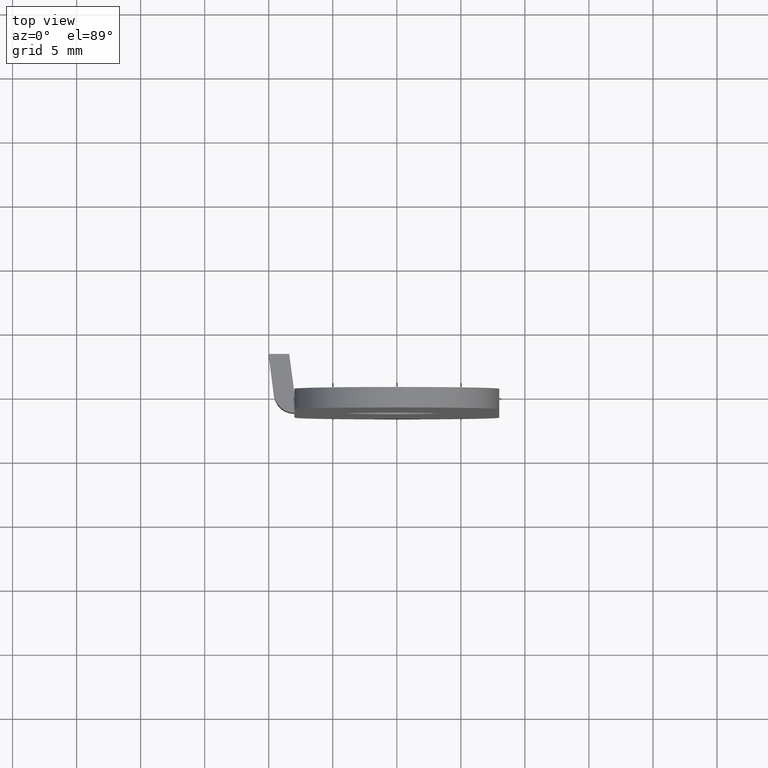
[diagram: clean part render]
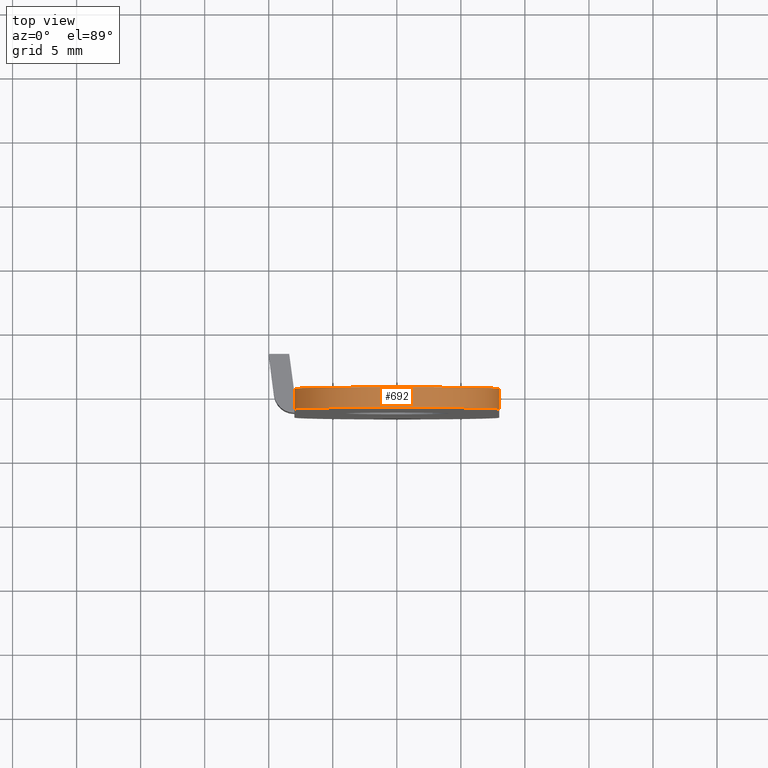
[diagram: same view with one face highlighted and labeled with its STEP entity id]
A machine part, top view. The second image highlights one B-rep face of the part: STEP entity #692.
In plain terms, the highlighted face is a freeform B-spline surface patch.
Its self-contained STEP definition (entity closure, byte-faithful):
#443=CARTESIAN_POINT('',(8.0,-1.599990999999965,19.0));
#444=VERTEX_POINT('',#443);
#452=CARTESIAN_POINT('',(-0.000000671420413,-1.599990999999965,26.999999999999979));
#453=VERTEX_POINT('',#452);
#454=CARTESIAN_POINT('',(8.0,-1.599990999999965,19.0));
#455=CARTESIAN_POINT('',(8.000055658176320,-1.599990999999967,19.523601726682081));
#456=CARTESIAN_POINT('',(7.900058436080794,-1.599990999999963,20.538051594862448));
#457=CARTESIAN_POINT('',(7.521515978707759,-1.599990999999972,21.814067541485230));
#458=CARTESIAN_POINT('',(6.957567482298716,-1.599990999999964,23.015969337826039));
#459=CARTESIAN_POINT('',(6.257013327467415,-1.599990999999957,24.050641715864302));
#460=CARTESIAN_POINT('',(5.308734373837774,-1.599990999999986,25.028422618844541));
#461=CARTESIAN_POINT('',(4.324430070476393,-1.599990999999913,25.767838439556130));
#462=CARTESIAN_POINT('',(3.210262216620889,-1.599991000000043,26.363364711971709));
#463=CARTESIAN_POINT('',(1.783427558124979,-1.599990999999904,26.859192141998982));
#464=CARTESIAN_POINT('',(0.670875504879247,-1.599990999999988,27.000181070990550));
#465=CARTESIAN_POINT('',(-0.000000671420413,-1.599990999999965,26.999999999999979));
#466=B_SPLINE_CURVE_WITH_KNOTS('',3,(#454,#455,#456,#457,#458,#459,#460,#461,#462,#463,#464,#465),.UNSPECIFIED.,.F.,.U.,(4,1,1,1,1,1,1,1,1,4),(0.000000037951718,1.570796537303250,3.043422620387393,3.976088266977515,5.546892700908940,6.774049362718611,8.050335254018872,9.228443648545097,10.553814228072291,12.566390705773090),.UNSPECIFIED.);
#467=EDGE_CURVE('',#444,#453,#466,.T.);
#469=CARTESIAN_POINT('',(-8.0,-1.599990999999965,19.0));
#470=VERTEX_POINT('',#469);
#471=CARTESIAN_POINT('',(-0.000000671420413,-1.599990999999965,26.999999999999979));
#472=CARTESIAN_POINT('',(-0.409058530334494,-1.599990999999967,27.000021492303130));
#473=CARTESIAN_POINT('',(-1.128997142312720,-1.599990999999961,26.944659344639899));
#474=CARTESIAN_POINT('',(-2.218660525742400,-1.599990999999967,26.710486490052840));
#475=CARTESIAN_POINT('',(-3.145530879441106,-1.599990999999970,26.378850672017400));
#476=CARTESIAN_POINT('',(-4.095356863511993,-1.599990999999963,25.897084283627049));
#477=CARTESIAN_POINT('',(-4.883322783046102,-1.599990999999969,25.363563316041908));
#478=CARTESIAN_POINT('',(-5.646387689577706,-1.599990999999961,24.692976438119072));
#479=CARTESIAN_POINT('',(-6.249944118269243,-1.599990999999970,24.022936347426349));
#480=CARTESIAN_POINT('',(-6.856391194409314,-1.599990999999968,23.167463483428559));
#481=CARTESIAN_POINT('',(-7.353571376795534,-1.599990999999963,22.223432441611699));
#482=CARTESIAN_POINT('',(-7.722798476186717,-1.599990999999968,21.171135533468910));
#483=CARTESIAN_POINT('',(-7.946885246248465,-1.599990999999961,20.112638819968112));
#484=CARTESIAN_POINT('',(-8.000017664104293,-1.599990999999973,19.392695676937169));
#485=CARTESIAN_POINT('',(-8.0,-1.599990999999965,19.0));
#486=B_SPLINE_CURVE_WITH_KNOTS('',3,(#471,#472,#473,#474,#475,#476,#477,#478,#479,#480,#481,#482,#483,#484,#485),.UNSPECIFIED.,.F.,.U.,(4,1,1,1,1,1,1,1,1,1,1,1,4),(0.000000038011205,1.227172697971893,2.159840542873159,3.337947909478849,4.172435515595490,5.350548260045036,6.185028635192336,7.215843494601299,8.050334768926938,9.326617916998785,10.406544262785321,11.388302338843920,12.566389948924650),.UNSPECIFIED.);
#487=EDGE_CURVE('',#453,#470,#486,.T.);
#553=CARTESIAN_POINT('',(8.0,0.0,19.0));
#554=VERTEX_POINT('',#553);
#605=CARTESIAN_POINT('',(-8.0,0.0,19.0));
#606=VERTEX_POINT('',#605);
#612=CARTESIAN_POINT('',(-0.000000671420413,0.0,26.999999999999979));
#613=VERTEX_POINT('',#612);
#614=CARTESIAN_POINT('',(-0.000000671420413,0.0,26.999999999999979));
#615=CARTESIAN_POINT('',(-0.409058530334453,0.0,27.000021492303119));
#616=CARTESIAN_POINT('',(-1.128997142312503,0.0,26.944659344639810));
#617=CARTESIAN_POINT('',(-2.218660525744756,0.0,26.710486490053849));
#618=CARTESIAN_POINT('',(-3.145530874310826,0.0,26.378850669165359));
#619=CARTESIAN_POINT('',(-4.095356896828961,0.0,25.897084302152621));
#620=CARTESIAN_POINT('',(-4.883322665121735,0.0,25.363563250486859));
#621=CARTESIAN_POINT('',(-5.646380869981027,0.0,24.692971783885781));
#622=CARTESIAN_POINT('',(-6.414601708059358,0.0,23.840227268056552));
#623=CARTESIAN_POINT('',(-7.107338756405541,0.0,22.760998469852780));
#624=CARTESIAN_POINT('',(-7.575450113111739,0.0,21.640444240427279));
#625=CARTESIAN_POINT('',(-7.908213628331541,0.0,20.423490316932750));
#626=CARTESIAN_POINT('',(-8.000114431770410,0.0,19.572695766128980));
#627=CARTESIAN_POINT('',(-8.0,0.0,19.0));
#628=B_SPLINE_CURVE_WITH_KNOTS('',3,(#614,#615,#616,#617,#618,#619,#620,#621,#622,#623,#624,#625,#626,#627),.UNSPECIFIED.,.F.,.U.,(4,1,1,1,1,1,1,1,1,1,1,4),(0.000000038011205,1.227172697971893,2.159840542873159,3.337947909478849,4.172435515595490,5.350548260045036,6.185028635192336,7.215843494601299,8.786653071018664,10.013847000659320,10.848336786208170,12.566389948924650),.UNSPECIFIED.);
#629=EDGE_CURVE('',#613,#606,#628,.T.);
#631=CARTESIAN_POINT('',(8.0,0.0,19.0));
#632=CARTESIAN_POINT('',(8.000035223863407,0.0,19.474505787027748));
#633=CARTESIAN_POINT('',(7.909521142593536,0.0,20.488983960037849));
#634=CARTESIAN_POINT('',(7.542416901466003,0.0,21.769546784843889));
#635=CARTESIAN_POINT('',(6.957576740421087,0.0,23.015974436050140));
#636=CARTESIAN_POINT('',(6.257007821979242,0.0,24.050639299313659));
#637=CARTESIAN_POINT('',(5.308735200877441,0.0,25.028423026176888));
#638=CARTESIAN_POINT('',(4.324430926242860,0.0,25.767841190327420));
#639=CARTESIAN_POINT('',(3.398362635514022,0.0,26.262807954450619));
#640=CARTESIAN_POINT('',(2.422760313678783,0.0,26.646046299451200));
#641=CARTESIAN_POINT('',(1.341705875589080,0.0,26.923897167868589));
#642=CARTESIAN_POINT('',(0.458145628851911,0.0,27.000034547355241));
#643=CARTESIAN_POINT('',(-0.000000671420413,0.0,26.999999999999979));
#644=B_SPLINE_CURVE_WITH_KNOTS('',3,(#631,#632,#633,#634,#635,#636,#637,#638,#639,#640,#641,#642,#643),.UNSPECIFIED.,.F.,.U.,(4,1,1,1,1,1,1,1,1,1,4),(0.000000037951718,1.423522324093755,3.043422620387393,3.976088266977515,5.546892700908940,6.774049362718611,8.050335254018872,9.228443648545097,9.915672165121981,11.191955773266610,12.566390705773090),.UNSPECIFIED.);
#645=EDGE_CURVE('',#554,#613,#644,.T.);
#658=CARTESIAN_POINT('',(-7.997258599804455,0.039999774999999,18.790584413537012));
#659=CARTESIAN_POINT('',(-7.997258599804455,-1.640990769374965,18.790584413537012));
#660=CARTESIAN_POINT('',(-8.217936582743215,0.039999774999999,27.217936582743196));
#661=CARTESIAN_POINT('',(-8.217936582743215,-1.640990769374965,27.217936582743196));
#662=CARTESIAN_POINT('',(0.209415586462976,0.039999774999999,26.997258599804461));
#663=CARTESIAN_POINT('',(0.209415586462976,-1.640990769374965,26.997258599804461));
#664=CARTESIAN_POINT('',(8.636767755669169,0.039999774999999,26.776580616865715));
#665=CARTESIAN_POINT('',(8.636767755669169,-1.640990769374965,26.776580616865715));
#666=CARTESIAN_POINT('',(7.975338669865026,0.039999774999999,18.372327234177249));
#667=CARTESIAN_POINT('',(7.975338669865026,-1.640990769374965,18.372327234177249));
#675=(BOUNDED_SURFACE()B_SPLINE_SURFACE(1,2,((#658,#660,#662,#664,#666),(#659,#661,#663,#665,#667)),.UNSPECIFIED.,.F.,.F.,.U.)B_SPLINE_SURFACE_WITH_KNOTS((2,2),(3,2,3),(0.0,1.0),(0.0,13.748284990938750,27.496569981877510),.UNSPECIFIED.)GEOMETRIC_REPRESENTATION_ITEM()RATIONAL_B_SPLINE_SURFACE(((1.0,0.688354575693754,1.0,0.688354575693754,1.0),(1.0,0.688354575693754,1.0,0.688354575693754,1.0)))REPRESENTATION_ITEM('')SURFACE());
#676=ORIENTED_EDGE('',*,*,#487,.F.);
#677=ORIENTED_EDGE('',*,*,#467,.F.);
#678=CARTESIAN_POINT('',(8.0,0.0,19.0));
#679=CARTESIAN_POINT('',(8.0,-1.599990999999965,19.0));
#680=QUASI_UNIFORM_CURVE('',1,(#678,#679),.UNSPECIFIED.,.F.,.U.);
#681=EDGE_CURVE('',#554,#444,#680,.T.);
#682=ORIENTED_EDGE('',*,*,#681,.F.);
#683=ORIENTED_EDGE('',*,*,#645,.T.);
#684=ORIENTED_EDGE('',*,*,#629,.T.);
#685=CARTESIAN_POINT('',(-8.0,0.0,19.0));
#686=CARTESIAN_POINT('',(-8.0,-1.599990999999965,19.0));
#687=QUASI_UNIFORM_CURVE('',1,(#685,#686),.UNSPECIFIED.,.F.,.U.);
#688=EDGE_CURVE('',#606,#470,#687,.T.);
#689=ORIENTED_EDGE('',*,*,#688,.T.);
#690=EDGE_LOOP('',(#676,#677,#682,#683,#684,#689));
#691=FACE_OUTER_BOUND('',#690,.T.);
#692=ADVANCED_FACE('',(#691),#675,.T.);